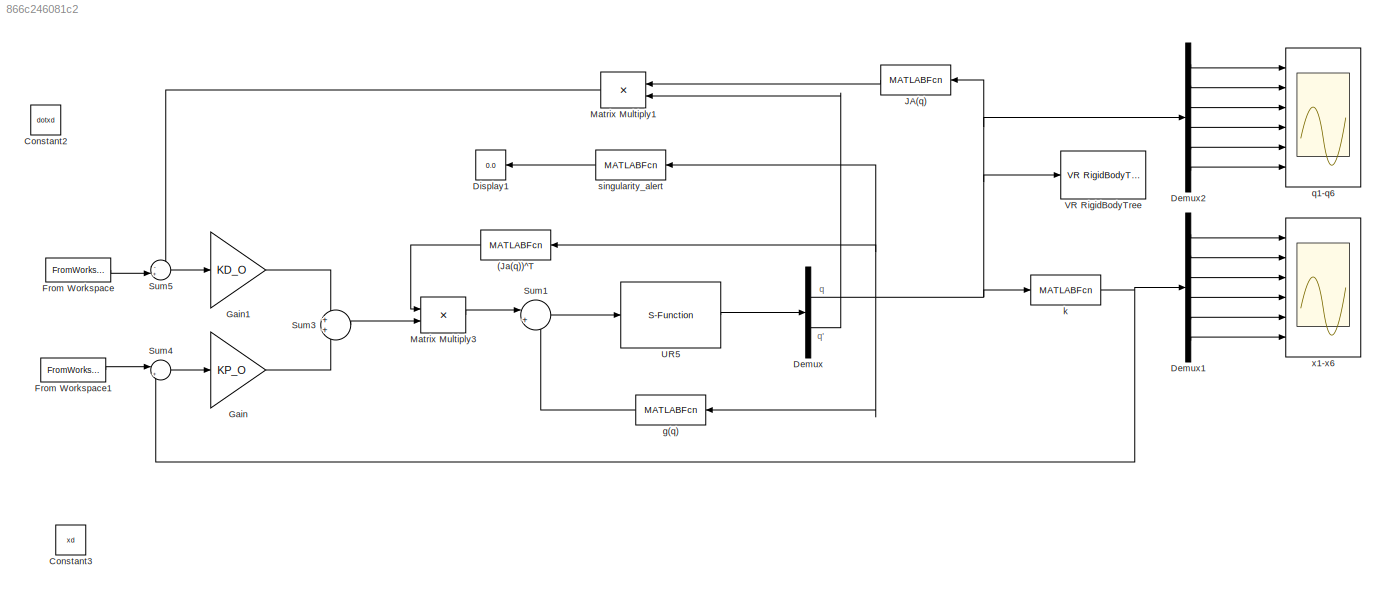
MODEL slx_866c246081c2
KIND model
CONFIG AbsTol = auto
CONFIG EnableMultiTasking = off
CONFIG FixedStep = auto
CONFIG MaxStep = auto
CONFIG MinStep = auto
CONFIG RelTol = 1e-3
CONFIG SampleTimeConstraint = Unconstrained
CONFIG SolverName = VariableStepAuto
CONFIG StartTime = 0.0
CONFIG StopTime = 30
BLOCK [MATLABFcn] (Ja(q))^T
  MATLABFcn = transpose(Analytical_Jacobian(dh,u))
  Output1D = off
  OutputDimensions = [dh.dof dh.dof]
  Ports = [1, 1]
BLOCK [Constant] Constant2
  Commented = on
  Value = dotxd
BLOCK [Constant] Constant3
  Value = xd
BLOCK [Demux] Demux
  Outputs = 2
  Ports = [1, 2]
BLOCK [Demux] Demux1
  Outputs = dh.dof
  Ports = [1, 6]
BLOCK [Demux] Demux2
  Outputs = dh.dof
  Ports = [1, 6]
BLOCK [Display] Display1
  Decimation = 1
  Ports = [1]
BLOCK [FromWorkspace] From Workspace
  VariableName = dotxdSim
BLOCK [FromWorkspace] From Workspace1
  VariableName = xdSim
BLOCK [Gain] Gain
  Gain = KP_O
  Multiplication = Matrix(K*u)
BLOCK [Gain] Gain1
  Gain = KD_O
  Multiplication = Matrix(K*u)
BLOCK [MATLABFcn] JA(q)
  MATLABFcn = Analytical_Jacobian(dh, u)
  Output1D = off
  OutputDimensions = [dh.dof dh.dof]
  Ports = [1, 1]
BLOCK [Product] Matrix Multiply1
  Multiplication = Matrix(*)
  Ports = [2, 1]
BLOCK [Product] Matrix Multiply3
  Multiplication = Matrix(*)
  Ports = [2, 1]
BLOCK [Sum] Sum1
  Inputs = |++
  Ports = [2, 1]
BLOCK [Sum] Sum3
  Ports = [2, 1]
BLOCK [Sum] Sum4
  Inputs = |+-
  Ports = [2, 1]
BLOCK [Sum] Sum5
  Inputs = -+|
  Ports = [2, 1]
BLOCK [S-Function] UR5
  EnableBusSupport = off
  FunctionName = fwd_dyn_S_matrix
  Parameters = dh, he, gravity, q0, dotq0
  Ports = [1, 1]
  SFcnIsStateOwnerBlock = off
  SFunctionDeploymentMode = off
BLOCK [Reference] VR RigidBodyTree  REF=vrlib/VR RigidBodyTree
  Ports = [1]
  SourceBlock = vrlib/VR RigidBodyTree
  SourceProductBaseCode = SL
  SourceType = VR RigidBodyTree
BLOCK [MATLABFcn] g(q)
  MATLABFcn = inv_dyn_recursive_NewtonEulero(dh,u,[0 0 0 0 0 0]', [0 0 0 0 0 0]',gravity)
  Output1D = off
  OutputDimensions = [dh.dof 1]
  Ports = [1, 1]
BLOCK [MATLABFcn] k
  MATLABFcn = kinematics(dh, u);
  Output1D = off
  OutputDimensions = [dh.dof 1]
  Ports = [1, 1]
BLOCK [Scope] q1-q6
  Floating = off
  NumInputPorts = 6
  Ports = [6]
  ScopeSpecificationString = Simulink.scopes.TimeScopeBlockCfg('CurrentConfiguration', extmgr.ConfigurationSet(extmgr.Configuration('Core','General UI',true),extmgr.Configuration('Core','Source UI',true),extmgr.Configuration('Sources','WiredSimulink',true),extmgr.Configuration('Visuals','Time Domain',true,'SerializedDisplays',{struct('MinYLimReal','-0.36987','MaxYLimReal','3.32886','YLabelReal','','MinYLimMag','0.00000','MaxY...<+4876ch>
BLOCK [MATLABFcn] singularity_alert
  MATLABFcn = singularity_alert(dh,u)
  Output1D = off
  Ports = [1, 1]
BLOCK [Scope] x1-x6
  Floating = off
  NumInputPorts = 6
  Ports = [6]
  ScopeSpecificationString = Simulink.scopes.TimeScopeBlockCfg('CurrentConfiguration', extmgr.ConfigurationSet(extmgr.Configuration('Core','General UI',true),extmgr.Configuration('Core','Source UI',true),extmgr.Configuration('Sources','WiredSimulink',true,'DataLoggingVariableName','ScopeData2'),extmgr.Configuration('Visuals','Time Domain',true,'SerializedDisplays',{struct('MinYLimReal','-0.26722','MaxYLimReal','0.76875','YLab...<+4945ch>
ANNOTATION (root): q
ANNOTATION (root): q'
LINE (Ja(q))^T:1 -> Matrix Multiply3:1
LINE Demux1:1 -> x1-x6:1
LINE Demux1:2 -> x1-x6:2
LINE Demux1:3 -> x1-x6:3
LINE Demux1:4 -> x1-x6:4
LINE Demux1:5 -> x1-x6:5
LINE Demux1:6 -> x1-x6:6
LINE Demux2:1 -> q1-q6:1
LINE Demux2:2 -> q1-q6:2
LINE Demux2:3 -> q1-q6:3
LINE Demux2:4 -> q1-q6:4
LINE Demux2:5 -> q1-q6:5
LINE Demux2:6 -> q1-q6:6
NET Demux:1 -> (Ja(q))^T:1, Demux2:1, JA(q):1, VR RigidBodyTree:1, g(q):1, k:1, singularity_alert:1
LINE Demux:2 -> Matrix Multiply1:2
LINE From Workspace1:1 -> Sum4:1
LINE From Workspace:1 -> Sum5:2
LINE Gain1:1 -> Sum3:1
LINE Gain:1 -> Sum3:2
LINE JA(q):1 -> Matrix Multiply1:1
LINE Matrix Multiply1:1 -> Sum5:1
LINE Matrix Multiply3:1 -> Sum1:1
LINE Sum1:1 -> UR5:1
LINE Sum3:1 -> Matrix Multiply3:2
LINE Sum4:1 -> Gain:1
LINE Sum5:1 -> Gain1:1
LINE UR5:1 -> Demux:1
LINE g(q):1 -> Sum1:2
NET k:1 -> Demux1:1, Sum4:2
LINE singularity_alert:1 -> Display1:1
note: NET lines group one-source signal fan-out (src -> all destinations, sorted); 1:1 wires keep LINE
